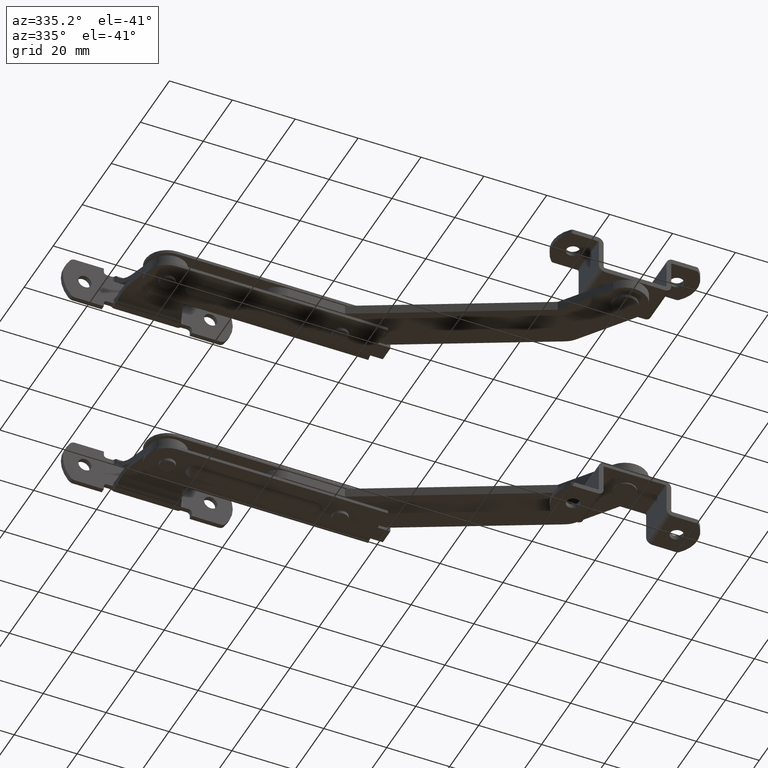
[diagram: clean part render]
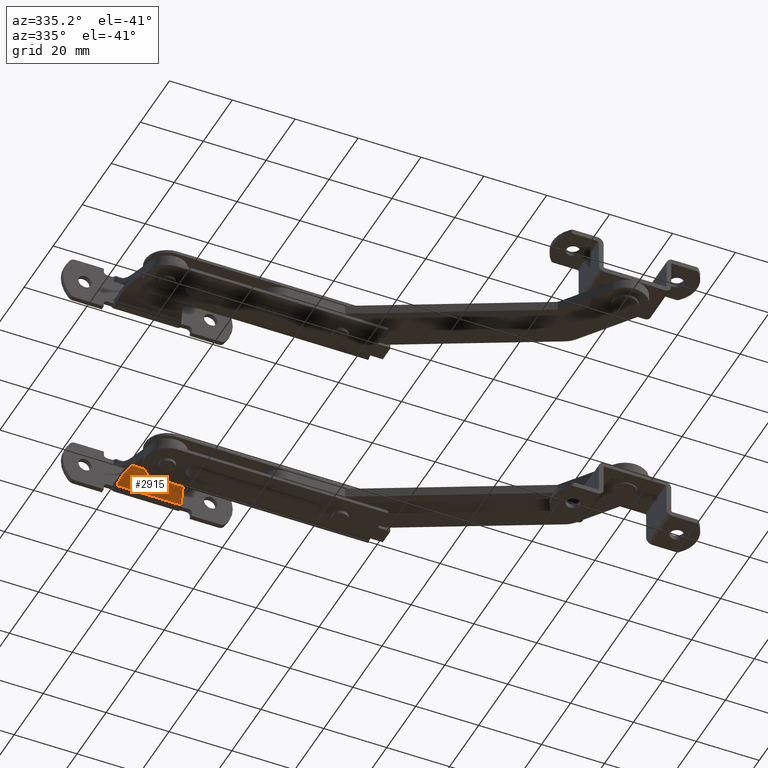
[diagram: same view with one face highlighted and labeled with its STEP entity id]
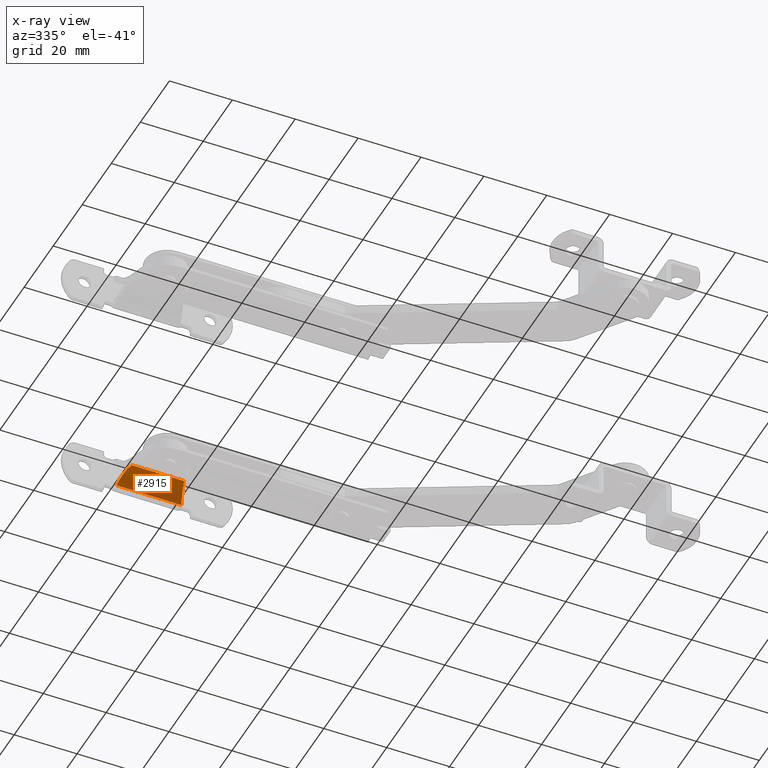
[diagram: x-ray of the same camera — body ghosted, the highlighted face saturated]
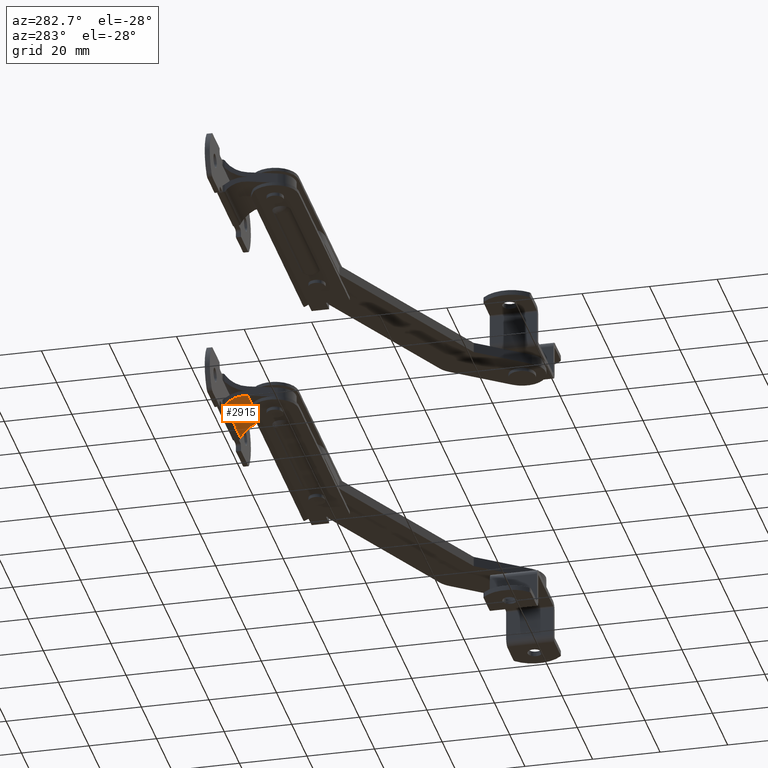
[diagram: same view with one face highlighted and labeled with its STEP entity id]
A machine part, auxiliary view. The second image highlights one B-rep face of the part: STEP entity #2915.
The next image is the same camera in x-ray: the body ghosted, the highlighted face saturated — about 0% of this face is hidden behind the body in this view.
A second angle (auxiliary view) of the same face is appended — the face is thin or edge-on in the first view.
In plain terms, the highlighted cylindrical surface (edge-blend (fillet) strip) has radius 7.2812 mm, axis along (1, 0, 0).
Its self-contained STEP definition (entity closure, byte-faithful):
#92=B_SPLINE_CURVE_WITH_KNOTS('',3,(#4865,#4866,#4867,#4868),
 .UNSPECIFIED.,.F.,.F.,(4,4),(0.12228694118765,0.148189593029539),
 .UNSPECIFIED.);
#99=B_SPLINE_CURVE_WITH_KNOTS('',3,(#4961,#4962,#4963,#4964),
 .UNSPECIFIED.,.F.,.F.,(4,4),(-0.148539173996057,-0.122622466538757),
 .UNSPECIFIED.);
#112=ELLIPSE('',#3168,7.62780437236041,7.28125);
#113=ELLIPSE('',#3169,7.62780437236041,7.28125);
#200=LINE('',#4895,#411);
#201=LINE('',#4973,#412);
#411=VECTOR('',#3746,20.0862994965043);
#412=VECTOR('',#3757,16.6294828017501);
#639=CYLINDRICAL_SURFACE('',#3167,7.28125);
#771=FACE_OUTER_BOUND('',#961,.T.);
#961=EDGE_LOOP('',(#2263,#2264,#2265,#2266,#2267,#2268));
#1348=VERTEX_POINT('',#4859);
#1349=VERTEX_POINT('',#4864);
#1354=VERTEX_POINT('',#4891);
#1359=VERTEX_POINT('',#4960);
#1360=VERTEX_POINT('',#4970);
#1361=VERTEX_POINT('',#4972);
#1679=EDGE_CURVE('',#1348,#1349,#92,.T.);
#1688=EDGE_CURVE('',#1349,#1354,#200,.T.);
#1695=EDGE_CURVE('',#1354,#1359,#99,.T.);
#1697=EDGE_CURVE('',#1360,#1348,#112,.T.);
#1698=EDGE_CURVE('',#1361,#1360,#201,.T.);
#1699=EDGE_CURVE('',#1361,#1359,#113,.T.);
#2263=ORIENTED_EDGE('',*,*,#1695,.F.);
#2264=ORIENTED_EDGE('',*,*,#1688,.F.);
#2265=ORIENTED_EDGE('',*,*,#1679,.F.);
#2266=ORIENTED_EDGE('',*,*,#1697,.F.);
#2267=ORIENTED_EDGE('',*,*,#1698,.F.);
#2268=ORIENTED_EDGE('',*,*,#1699,.T.);
#2915=ADVANCED_FACE('',(#771),#639,.F.);
#3167=AXIS2_PLACEMENT_3D('',#4969,#3753,#3754);
#3168=AXIS2_PLACEMENT_3D('',#4971,#3755,#3756);
#3169=AXIS2_PLACEMENT_3D('',#4974,#3758,#3759);
#3746=DIRECTION('',(-1.,0.,0.));
#3753=DIRECTION('center_axis',(1.,0.,0.));
#3754=DIRECTION('ref_axis',(0.,1.,-1.52476981922768E-16));
#3755=DIRECTION('center_axis',(-0.95456695590986,-2.29751804975439E-17,
-0.297996521263224));
#3756=DIRECTION('ref_axis',(-0.297996521263224,1.4554948848034E-16,0.95456695590986));
#3757=DIRECTION('',(1.,0.,0.));
#3758=DIRECTION('center_axis',(-0.95456695590986,2.29751804975439E-17,0.297996521263224));
#3759=DIRECTION('ref_axis',(0.297996521263224,1.4554948848034E-16,0.95456695590986));
#4859=CARTESIAN_POINT('',(10.2350847496831,-4.88550118382665,2.34859831201527));
#4864=CARTESIAN_POINT('',(10.0431497482521,-5.01698113207547,2.2672733533008));
#4865=CARTESIAN_POINT('Ctrl Pts',(10.235084749914,-4.88550118418304,2.34859831204621));
#4866=CARTESIAN_POINT('Ctrl Pts',(10.167425256387,-4.92628768713765,2.322767781275));
#4867=CARTESIAN_POINT('Ctrl Pts',(10.1032856122252,-4.97035049303015,2.29543602957391));
#4868=CARTESIAN_POINT('Ctrl Pts',(10.0431497482521,-5.01698113207547,2.2672733533008));
#4891=CARTESIAN_POINT('',(-10.0431497482521,-5.01698113207547,2.2672733533008));
#4895=CARTESIAN_POINT('',(0.,-5.01698113207547,2.2672733533008));
#4960=CARTESIAN_POINT('',(-10.2350847493909,-4.88550118418596,2.34859831188259));
#4961=CARTESIAN_POINT('Ctrl Pts',(-10.0431497482521,-5.01698113207547,2.26727335330081));
#4962=CARTESIAN_POINT('Ctrl Pts',(-10.103318243885,-4.97032518974104,2.29545131155062));
#4963=CARTESIAN_POINT('Ctrl Pts',(-10.1674581578481,-4.92626785349544,2.32278034213594));
#4964=CARTESIAN_POINT('Ctrl Pts',(-10.2350847495365,-4.8855011844106,2.34859831190209));
#4969=CARTESIAN_POINT('Origin',(0.,-8.78125,8.5));
#4970=CARTESIAN_POINT('',(8.31474140087503,-1.5,8.5));
#4971=CARTESIAN_POINT('Origin',(8.31474140087503,-8.78125,8.5));
#4972=CARTESIAN_POINT('',(-8.31474140087503,-1.5,8.5));
#4973=CARTESIAN_POINT('',(0.,-1.5,8.5));
#4974=CARTESIAN_POINT('Origin',(-8.31474140087503,-8.78125,8.5));